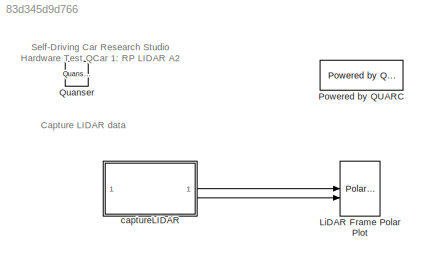
MODEL slx_83d345d9d766
KIND model
CONFIG AbsTol = auto
CONFIG EnableMultiTasking = on
CONFIG FixedStep = 1/30
CONFIG MaxStep = auto
CONFIG MinStep = auto
CONFIG RelTol = 1e-3
CONFIG SampleTimeConstraint = Unconstrained
CONFIG SolverName = ode2
CONFIG StartTime = 0.0
CONFIG StopTime = inf
BLOCK [Reference] LiDAR Frame Polar Plot  REF=quarc_library/Sinks/Figures/Polar Figure
  SourceBlock = quarc_library/Sinks/Figures/Polar Figure
  SourceProductName = QUARC Targets
  SourceType = Polar Figure
BLOCK [Reference] Powered by QUARC  REF=quarc_library/Logos/Powered by QUARC
  SourceBlock = quarc_library/Logos/Powered by QUARC
  SourceProductName = QUARC Targets
  SourceType = Powered by QUARC
BLOCK [Reference] Quanser  REF=quarc_library/Logos/Quanser
  SourceBlock = quarc_library/Logos/Quanser
  SourceProductName = QUARC Targets
  SourceType = Powered by Quanser
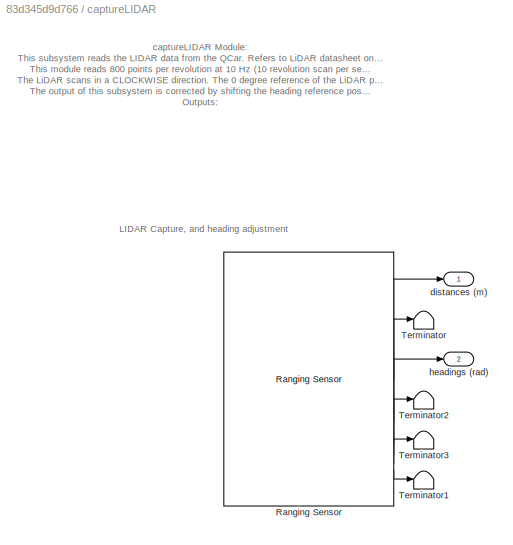
BLOCK [SubSystem] captureLIDAR
BLOCK [Reference] captureLIDAR/Ranging Sensor  REF=quarc_library/Devices/Third-Party/Sensors/Ranging Sensor
  SourceBlock = quarc_library/Devices/Third-Party/Sensors/Ranging Sensor
  SourceProductName = QUARC Targets
  SourceType = Ranging Sensor
BLOCK [Terminator] captureLIDAR/Terminator
BLOCK [Terminator] captureLIDAR/Terminator1
BLOCK [Terminator] captureLIDAR/Terminator2
BLOCK [Terminator] captureLIDAR/Terminator3
BLOCK [Outport] captureLIDAR/distances (m)
  VectorParamsAs1DForOutWhenUnconnected = off
BLOCK [Outport] captureLIDAR/headings (rad)
  Port = 2
  VectorParamsAs1DForOutWhenUnconnected = off
ANNOTATION (root): Self-Driving Car Research Studio Hardware Test QCar 1: RP LIDAR A2
ANNOTATION (root): Capture LIDAR data
ANNOTATION captureLIDAR: captureLIDAR Module: This subsystem reads the LIDAR data from the QCar. Refers to LiDAR datasheet on detailed data specifications. This module reads 800 points per revolution at 10 Hz (10 revolution scan per second). The LiDAR scans in a CLOCKWISE direction. The 0 degree reference of the LiDAR points to the LEFT side of the QCar. The output of this subsystem is corrected by shifting the heading re...<+257ch>
ANNOTATION captureLIDAR: LIDAR Capture, and heading adjustment
LINE captureLIDAR/Ranging Sensor:1 -> captureLIDAR/distances (m):1
LINE captureLIDAR/Ranging Sensor:2 -> captureLIDAR/Terminator:1
LINE captureLIDAR/Ranging Sensor:3 -> captureLIDAR/headings (rad):1
LINE captureLIDAR/Ranging Sensor:4 -> captureLIDAR/Terminator2:1
LINE captureLIDAR/Ranging Sensor:5 -> captureLIDAR/Terminator3:1
LINE captureLIDAR/Ranging Sensor:6 -> captureLIDAR/Terminator1:1
LINE captureLIDAR:1 -> LiDAR Frame Polar Plot:1
LINE captureLIDAR:2 -> LiDAR Frame Polar Plot:2
